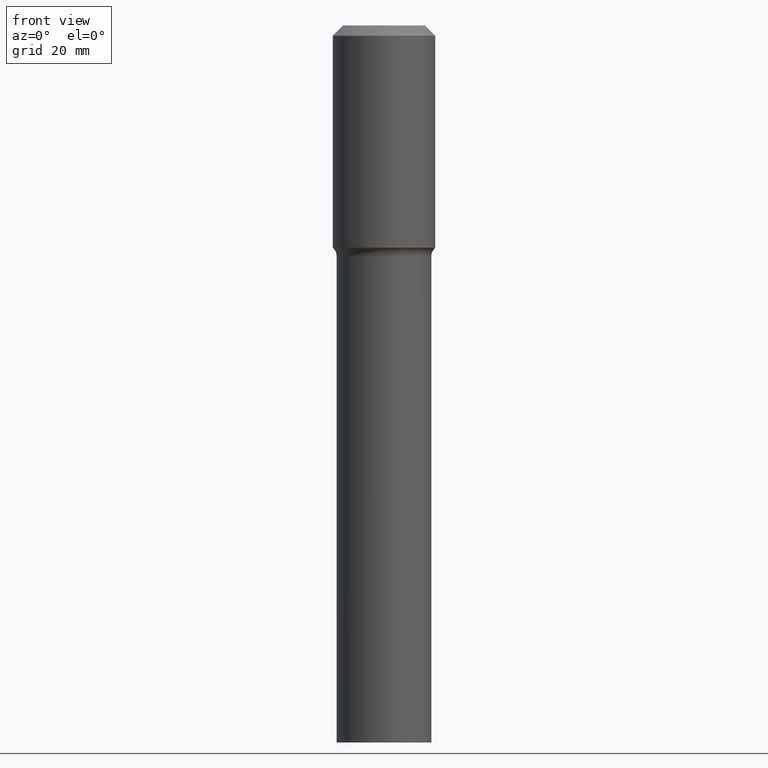
[diagram: clean part render]
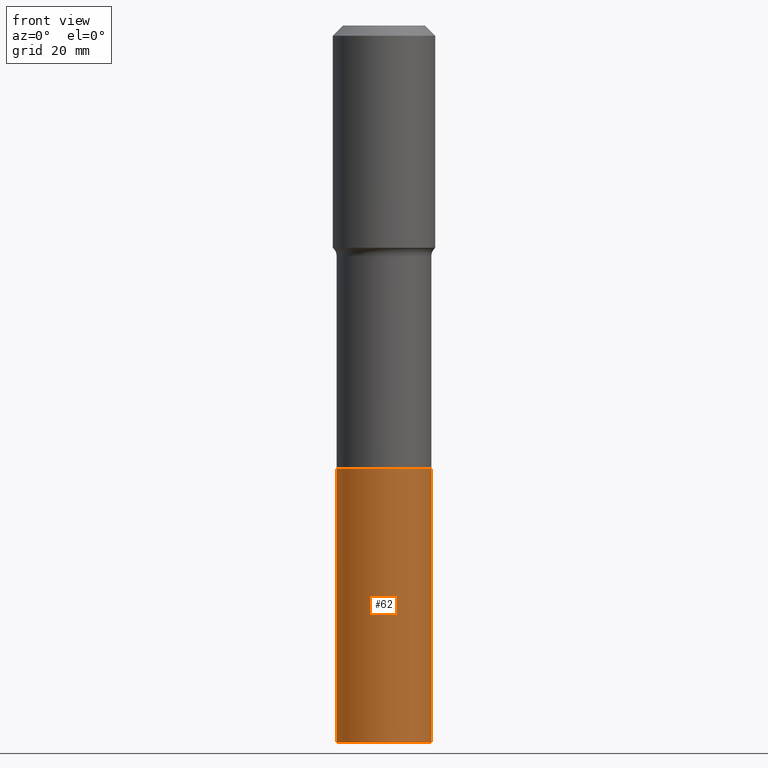
[diagram: same view with one face highlighted and labeled with its STEP entity id]
A machine part, front view. The second image highlights one B-rep face of the part: STEP entity #62.
In plain terms, the highlighted cylindrical surface (partial cylindrical patch) has radius 9.2494 mm, axis along (-0, 0, 1).
Its self-contained STEP definition (entity closure, byte-faithful):
#2 = EDGE_CURVE ( 'NONE', #196, #352, #4, .T. ) ;
#4 = CIRCLE ( 'NONE', #32, 0.3641499999999999737 ) ;
#11 = EDGE_CURVE ( 'NONE', #472, #232, #127, .T. ) ;
#17 = DIRECTION ( 'NONE',  ( 1.000000000000000000, -6.982962677686263555E-15, 0.000000000000000000 ) ) ;
#32 = AXIS2_PLACEMENT_3D ( 'NONE', #402, #364, #40 ) ;
#40 = DIRECTION ( 'NONE',  ( 1.000000000000000000, -6.982962677686263555E-15, 0.000000000000000000 ) ) ;
#58 = LINE ( 'NONE', #464, #477 ) ;
#62 = ADVANCED_FACE ( 'NONE', ( #409 ), #324, .T. ) ;
#85 = DIRECTION ( 'NONE',  ( 1.000000000000000000, -6.982962677686263555E-15, 0.000000000000000000 ) ) ;
#97 = DIRECTION ( 'NONE',  ( -2.445468806185136597E-29, 3.491481338843145583E-15, 1.000000000000000000 ) ) ;
#127 = CIRCLE ( 'NONE', #299, 0.3641499999999999737 ) ;
#130 = CARTESIAN_POINT ( 'NONE',  ( 8.328777660105338684E-29, -1.189128714383198387E-14, -3.405800000000000161 ) ) ;
#166 = ORIENTED_EDGE ( 'NONE', *, *, #330, .T. ) ;
#189 = LINE ( 'NONE', #219, #355 ) ;
#196 = VERTEX_POINT ( 'NONE', #445 ) ;
#219 = CARTESIAN_POINT ( 'NONE',  ( -0.3641499999999999737, -9.303845771561579230E-15, -3.405800000000000161 ) ) ;
#232 = VERTEX_POINT ( 'NONE', #500 ) ;
#241 = ORIENTED_EDGE ( 'NONE', *, *, #2, .T. ) ;
#244 = ORIENTED_EDGE ( 'NONE', *, *, #11, .F. ) ;
#299 = AXIS2_PLACEMENT_3D ( 'NONE', #322, #442, #85 ) ;
#309 = DIRECTION ( 'NONE',  ( -2.445468806185136877E-29, 3.491481338843145188E-15, 1.000000000000000000 ) ) ;
#318 = EDGE_CURVE ( 'NONE', #196, #472, #189, .T. ) ;
#322 = CARTESIAN_POINT ( 'NONE',  ( 8.328777660105338684E-29, -1.189128714383198387E-14, -3.405800000000000161 ) ) ;
#324 = CYLINDRICAL_SURFACE ( 'NONE', #347, 0.3641499999999999737 ) ;
#330 = EDGE_CURVE ( 'NONE', #352, #232, #58, .T. ) ;
#342 = DIRECTION ( 'NONE',  ( -2.445468806185136877E-29, 3.491481338843145188E-15, 1.000000000000000000 ) ) ;
#347 = AXIS2_PLACEMENT_3D ( 'NONE', #130, #97, #17 ) ;
#352 = VERTEX_POINT ( 'NONE', #417 ) ;
#355 = VECTOR ( 'NONE', #309, 39.37007874015748143 ) ;
#364 = DIRECTION ( 'NONE',  ( -2.445468806185136597E-29, 3.491481338843145583E-15, 1.000000000000000000 ) ) ;
#369 = CARTESIAN_POINT ( 'NONE',  ( -0.3641499999999999737, -1.298037562136341247E-14, -3.405800000000000161 ) ) ;
#402 = CARTESIAN_POINT ( 'NONE',  ( 1.347893496593123646E-28, -1.924434684343564878E-14, -5.511800000000000033 ) ) ;
#409 = FACE_OUTER_BOUND ( 'NONE', #439, .T. ) ;
#417 = CARTESIAN_POINT ( 'NONE',  ( 0.3641499999999999737, -2.178719270251510160E-14, -5.511800000000000033 ) ) ;
#439 = EDGE_LOOP ( 'NONE', ( #508, #241, #166, #244 ) ) ;
#442 = DIRECTION ( 'NONE',  ( -2.445468806185136597E-29, 3.491481338843145583E-15, 1.000000000000000000 ) ) ;
#445 = CARTESIAN_POINT ( 'NONE',  ( -0.3641499999999999737, -1.298037562136341247E-14, -5.511800000000000033 ) ) ;
#464 = CARTESIAN_POINT ( 'NONE',  ( 0.3641499999999999737, -1.443413300291143827E-14, -3.405800000000000161 ) ) ;
#472 = VERTEX_POINT ( 'NONE', #369 ) ;
#477 = VECTOR ( 'NONE', #342, 39.37007874015748143 ) ;
#500 = CARTESIAN_POINT ( 'NONE',  ( 0.3641499999999999737, -1.443413300291143827E-14, -3.405800000000000161 ) ) ;
#508 = ORIENTED_EDGE ( 'NONE', *, *, #318, .F. ) ;